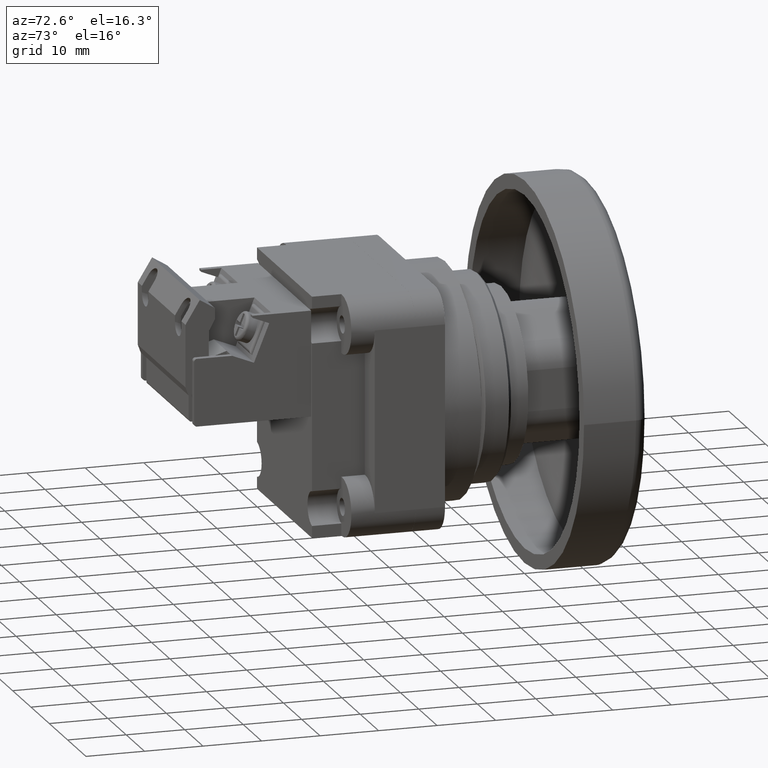
[diagram: clean part render]
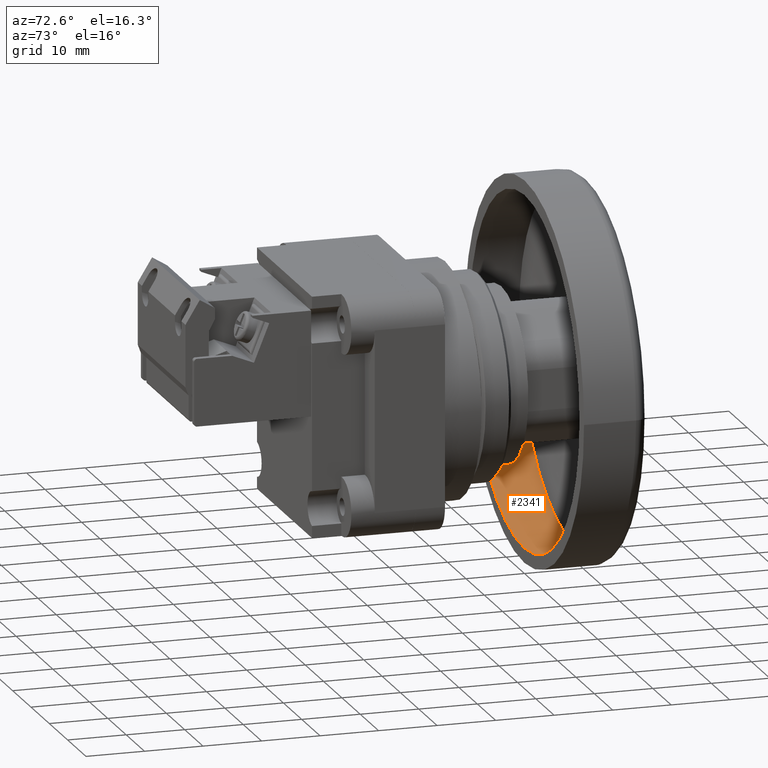
[diagram: same view with one face highlighted and labeled with its STEP entity id]
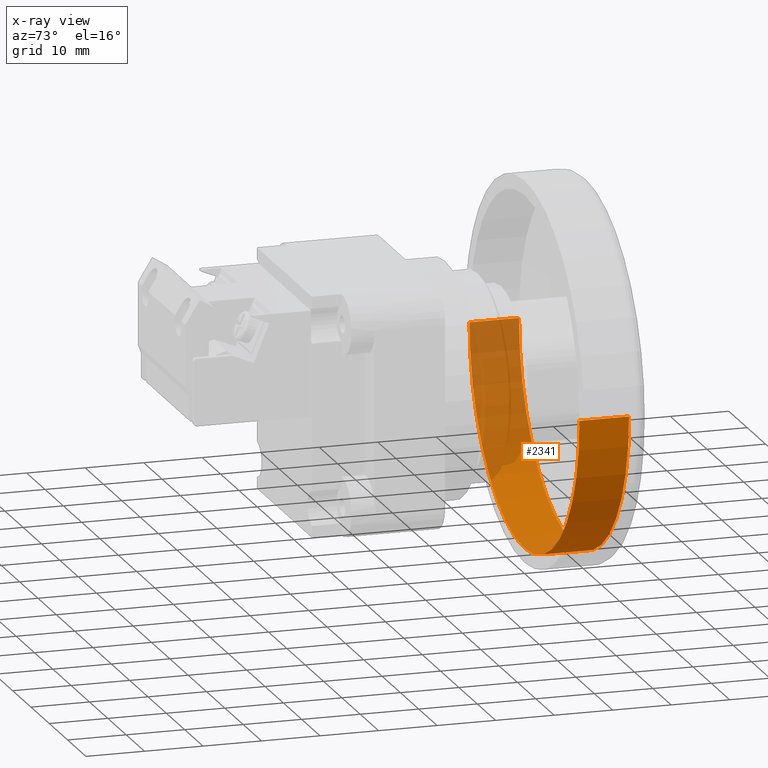
[diagram: x-ray of the same camera — body ghosted, the highlighted face saturated]
A machine part, auxiliary view. The second image highlights one B-rep face of the part: STEP entity #2341.
The next image is the same camera in x-ray: the body ghosted, the highlighted face saturated — about 39% of this face is hidden behind the body in this view.
In plain terms, the highlighted cylindrical surface (partial cylindrical patch) has radius 30 mm, axis along (-0, -1, -0).
Its self-contained STEP definition (entity closure, byte-faithful):
#134 = ORIENTED_EDGE ( 'NONE', *, *, #5225, .T. ) ;
#215 = VERTEX_POINT ( 'NONE', #4326 ) ;
#252 = DIRECTION ( 'NONE',  ( -9.376883653928686100E-017, -1.000000000000000000, -0.0000000000000000000 ) ) ;
#663 = CARTESIAN_POINT ( 'NONE',  ( -30.00000000000002800, 28.47232749496467400, 0.0000000000000000000 ) ) ;
#831 = LINE ( 'NONE', #1095, #3797 ) ;
#855 = AXIS2_PLACEMENT_3D ( 'NONE', #3242, #252, #5598 ) ;
#986 = LINE ( 'NONE', #2559, #2572 ) ;
#1095 = CARTESIAN_POINT ( 'NONE',  ( -30.00000000000001100, -21.00000000000000000, 3.673940397442060800E-015 ) ) ;
#1281 = VERTEX_POINT ( 'NONE', #663 ) ;
#1689 = VERTEX_POINT ( 'NONE', #2975 ) ;
#1760 = CARTESIAN_POINT ( 'NONE',  ( 3.844522298110762500E-015, 20.00000000000000400, 0.0000000000000000000 ) ) ;
#2038 = FACE_OUTER_BOUND ( 'NONE', #3081, .T. ) ;
#2341 = ADVANCED_FACE ( 'NONE', ( #2038 ), #5001, .F. ) ;
#2350 = DIRECTION ( 'NONE',  ( -1.000000000000000000, 1.156482317317871000E-016, 0.0000000000000000000 ) ) ;
#2559 = CARTESIAN_POINT ( 'NONE',  ( 30.00000000000001100, -21.00000000000000700, 0.0000000000000000000 ) ) ;
#2567 = EDGE_CURVE ( 'NONE', #1281, #215, #3333, .T. ) ;
#2572 = VECTOR ( 'NONE', #6718, 1000.000000000000000 ) ;
#2765 = VERTEX_POINT ( 'NONE', #5426 ) ;
#2868 = CARTESIAN_POINT ( 'NONE',  ( 4.638962590093410100E-015, 28.47232749496467400, 0.0000000000000000000 ) ) ;
#2975 = CARTESIAN_POINT ( 'NONE',  ( -30.00000000000000700, 20.00000000000000700, 3.673940397442060800E-015 ) ) ;
#3081 = EDGE_LOOP ( 'NONE', ( #4357, #134, #4946, #5201 ) ) ;
#3242 = CARTESIAN_POINT ( 'NONE',  ( 0.0000000000000000000, -21.00000000000000400, 0.0000000000000000000 ) ) ;
#3333 = CIRCLE ( 'NONE', #3561, 30.00000000000001100 ) ;
#3459 = DIRECTION ( 'NONE',  ( 1.000000000000000000, -1.156482317317871000E-016, 0.0000000000000000000 ) ) ;
#3561 = AXIS2_PLACEMENT_3D ( 'NONE', #2868, #7041, #3459 ) ;
#3797 = VECTOR ( 'NONE', #4650, 1000.000000000000000 ) ;
#3894 = EDGE_CURVE ( 'NONE', #215, #2765, #986, .T. ) ;
#4326 = CARTESIAN_POINT ( 'NONE',  ( 30.00000000000006400, 28.47232749496467400, -3.673940397442063900E-015 ) ) ;
#4357 = ORIENTED_EDGE ( 'NONE', *, *, #2567, .F. ) ;
#4406 = CIRCLE ( 'NONE', #6797, 30.00000000000001100 ) ;
#4650 = DIRECTION ( 'NONE',  ( -9.376883653928686100E-017, -1.000000000000000000, -0.0000000000000000000 ) ) ;
#4946 = ORIENTED_EDGE ( 'NONE', *, *, #6580, .T. ) ;
#5001 = CYLINDRICAL_SURFACE ( 'NONE', #855, 30.00000000000001100 ) ;
#5201 = ORIENTED_EDGE ( 'NONE', *, *, #3894, .F. ) ;
#5225 = EDGE_CURVE ( 'NONE', #1281, #1689, #831, .T. ) ;
#5426 = CARTESIAN_POINT ( 'NONE',  ( 30.00000000000001400, 20.00000000000000000, 0.0000000000000000000 ) ) ;
#5598 = DIRECTION ( 'NONE',  ( 1.000000000000000000, -1.156482317317871000E-016, 0.0000000000000000000 ) ) ;
#5893 = DIRECTION ( 'NONE',  ( -9.376883653928686100E-017, -1.000000000000000000, -0.0000000000000000000 ) ) ;
#6580 = EDGE_CURVE ( 'NONE', #1689, #2765, #4406, .T. ) ;
#6718 = DIRECTION ( 'NONE',  ( -9.376883653928686100E-017, -1.000000000000000000, -0.0000000000000000000 ) ) ;
#6797 = AXIS2_PLACEMENT_3D ( 'NONE', #1760, #5893, #2350 ) ;
#7041 = DIRECTION ( 'NONE',  ( -9.376883653928687400E-017, -1.000000000000000000, -0.0000000000000000000 ) ) ;